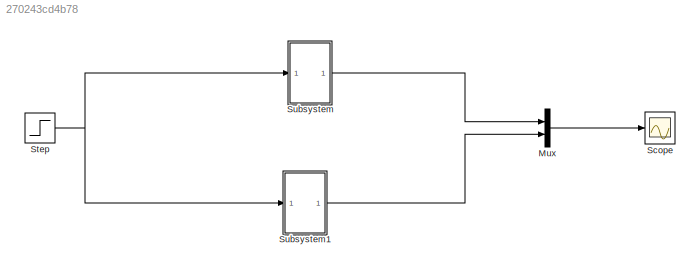
MODEL slx_270243cd4b78
KIND model
CONFIG AbsTol = auto
CONFIG EnableMultiTasking = off
CONFIG FixedStep = auto
CONFIG MaxStep = auto
CONFIG MinStep = auto
CONFIG RelTol = 1e-3
CONFIG SampleTimeConstraint = Unconstrained
CONFIG SolverName = VariableStepAuto
CONFIG StartTime = 0.0
CONFIG StopTime = 10.0
BLOCK [Mux] Mux
  DisplayOption = bar
  Inputs = 2
  Ports = [2, 1]
BLOCK [Scope] Scope
  Floating = off
  NumInputPorts = 1
  Ports = [1]
  ScopeSpecificationString = Simulink.scopes.TimeScopeBlockCfg('CurrentConfiguration', extmgr.ConfigurationSet(extmgr.Configuration('Core','General UI',true),extmgr.Configuration('Core','Source UI',true),extmgr.Configuration('Sources','WiredSimulink',true),extmgr.Configuration('Visuals','Time Domain',true,'SerializedDisplays',{struct('MinYLimReal','-0.12656','MaxYLimReal','1.13907','YLabelReal','','MinYLimMag','0.00000','MaxY...<+1342ch>
BLOCK [Step] Step
  SampleTime = 0
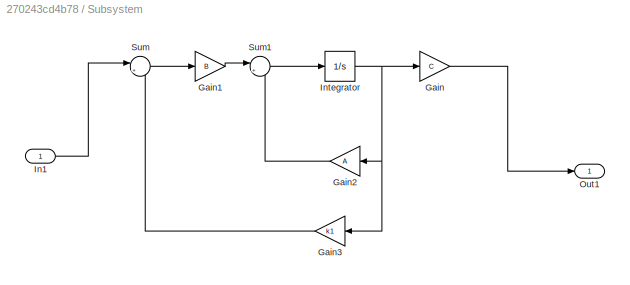
BLOCK [SubSystem] Subsystem
  Ports = [1, 1]
  RequestExecContextInheritance = off
BLOCK [Gain] Subsystem/Gain
  Gain = C
  Multiplication = Matrix(K*u)
BLOCK [Gain] Subsystem/Gain1
  Gain = B
  Multiplication = Matrix(K*u)
BLOCK [Gain] Subsystem/Gain2
  Gain = A
  Multiplication = Matrix(K*u)
  NameLocation = top
BLOCK [Gain] Subsystem/Gain3
  Gain = k1
  Multiplication = Matrix(K*u)
  NameLocation = top
BLOCK [Inport] Subsystem/In1
BLOCK [Integrator] Subsystem/Integrator
  Ports = [1, 1]
BLOCK [Outport] Subsystem/Out1
BLOCK [Sum] Subsystem/Sum
  Inputs = |+-
  Ports = [2, 1]
BLOCK [Sum] Subsystem/Sum1
  Inputs = |++
  Ports = [2, 1]
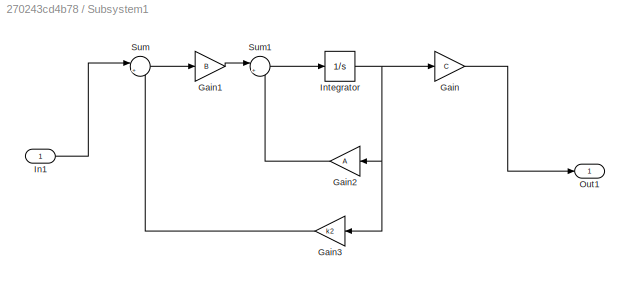
BLOCK [SubSystem] Subsystem1
  Ports = [1, 1]
  RequestExecContextInheritance = off
BLOCK [Gain] Subsystem1/Gain
  Gain = C
  Multiplication = Matrix(K*u)
BLOCK [Gain] Subsystem1/Gain1
  Gain = B
  Multiplication = Matrix(K*u)
BLOCK [Gain] Subsystem1/Gain2
  Gain = A
  Multiplication = Matrix(K*u)
  NameLocation = top
BLOCK [Gain] Subsystem1/Gain3
  Gain = k2
  Multiplication = Matrix(K*u)
  NameLocation = top
BLOCK [Inport] Subsystem1/In1
BLOCK [Integrator] Subsystem1/Integrator
  Ports = [1, 1]
BLOCK [Outport] Subsystem1/Out1
BLOCK [Sum] Subsystem1/Sum
  Inputs = |+-
  Ports = [2, 1]
BLOCK [Sum] Subsystem1/Sum1
  Inputs = |++
  Ports = [2, 1]
LINE Mux:1 -> Scope:1
NET Step:1 -> Subsystem1:1, Subsystem:1
LINE Subsystem/Gain1:1 -> Subsystem/Sum1:1
LINE Subsystem/Gain2:1 -> Subsystem/Sum1:2
LINE Subsystem/Gain3:1 -> Subsystem/Sum:2
LINE Subsystem/Gain:1 -> Subsystem/Out1:1
LINE Subsystem/In1:1 -> Subsystem/Sum:1
NET Subsystem/Integrator:1 -> Subsystem/Gain2:1, Subsystem/Gain3:1, Subsystem/Gain:1
LINE Subsystem/Sum1:1 -> Subsystem/Integrator:1
LINE Subsystem/Sum:1 -> Subsystem/Gain1:1
LINE Subsystem1/Gain1:1 -> Subsystem1/Sum1:1
LINE Subsystem1/Gain2:1 -> Subsystem1/Sum1:2
LINE Subsystem1/Gain3:1 -> Subsystem1/Sum:2
LINE Subsystem1/Gain:1 -> Subsystem1/Out1:1
LINE Subsystem1/In1:1 -> Subsystem1/Sum:1
NET Subsystem1/Integrator:1 -> Subsystem1/Gain2:1, Subsystem1/Gain3:1, Subsystem1/Gain:1
LINE Subsystem1/Sum1:1 -> Subsystem1/Integrator:1
LINE Subsystem1/Sum:1 -> Subsystem1/Gain1:1
LINE Subsystem1:1 -> Mux:2
LINE Subsystem:1 -> Mux:1
note: NET lines group one-source signal fan-out (src -> all destinations, sorted); 1:1 wires keep LINE
